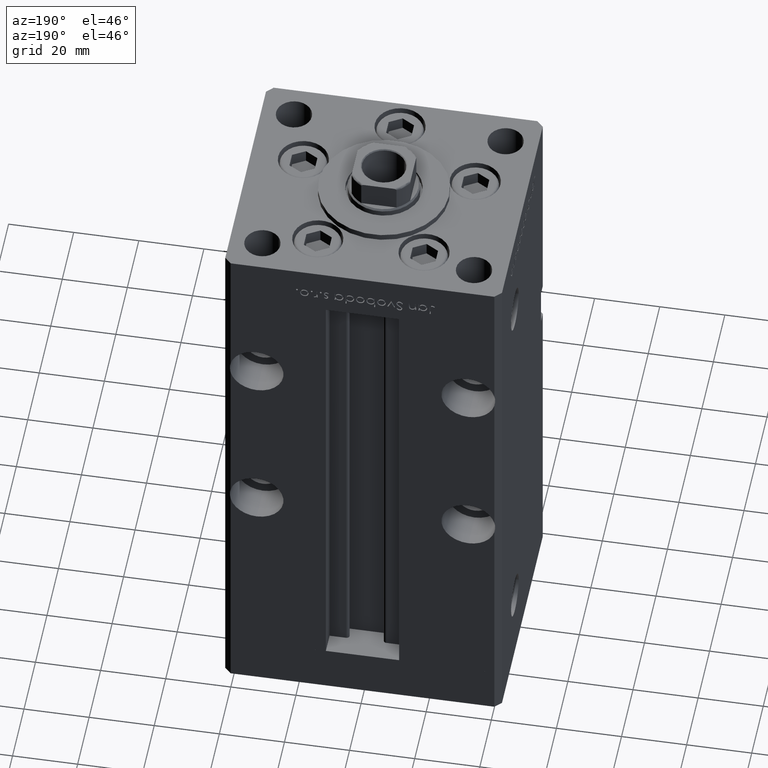
[diagram: clean part render]
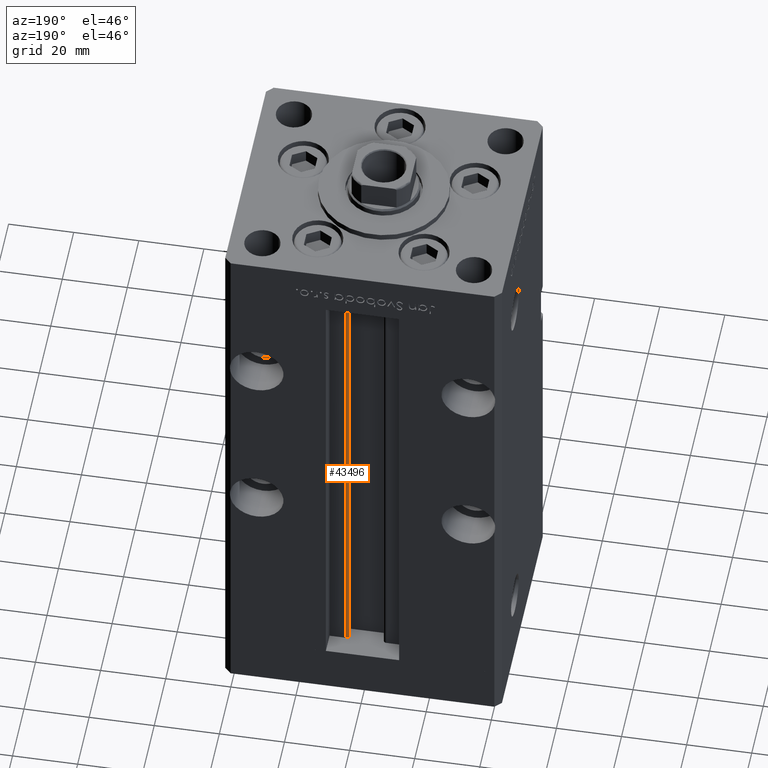
[diagram: same view with one face highlighted and labeled with its STEP entity id]
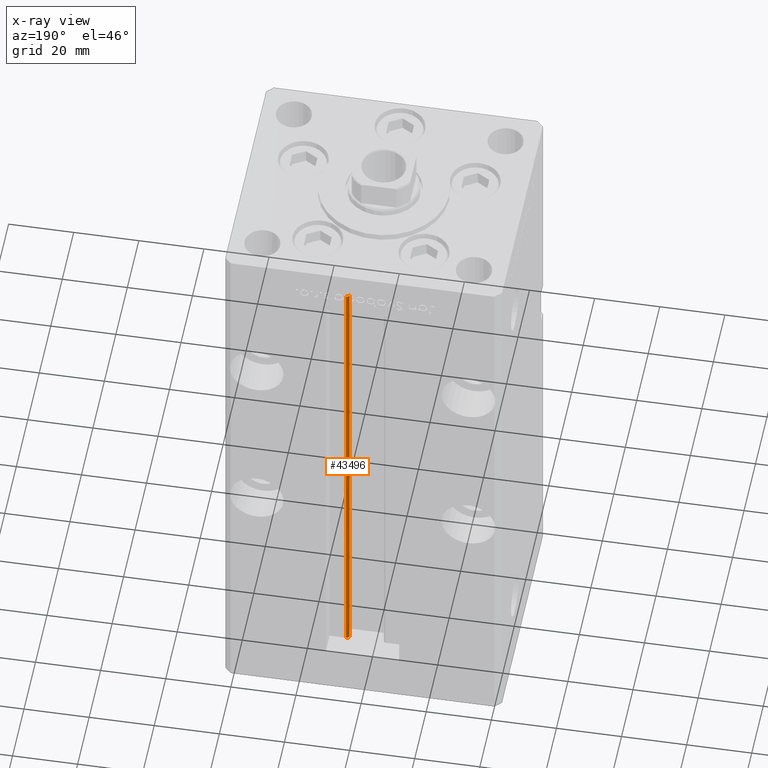
[diagram: x-ray of the same camera — body ghosted, the highlighted face saturated]
A machine part, auxiliary view. The second image highlights one B-rep face of the part: STEP entity #43496.
The next image is the same camera in x-ray: the body ghosted, the highlighted face saturated — about 0% of this face is hidden behind the body in this view.
In plain terms, the highlighted cylindrical surface (edge-blend (fillet) strip) has radius 0.9333 mm, axis along (0, 0, 1).
Its self-contained STEP definition (entity closure, byte-faithful):
#1014 = DIRECTION ( 'NONE',  ( -0.000000000000000000, -0.000000000000000000, 1.000000000000000000 ) ) ;
#1537 = FACE_OUTER_BOUND ( 'NONE', #52200, .T. ) ;
#2298 = CARTESIAN_POINT ( 'NONE',  ( 6.183333333333997928, 31.00000000000000000, 0.000000000000000000 ) ) ;
#4449 = CARTESIAN_POINT ( 'NONE',  ( 5.375042956467947164, 29.59999999999899245, 0.000000000000000000 ) ) ;
#6201 = ORIENTED_EDGE ( 'NONE', *, *, #49771, .F. ) ;
#6598 = AXIS2_PLACEMENT_3D ( 'NONE', #7160, #30539, #39946 ) ;
#6727 = DIRECTION ( 'NONE',  ( 1.000000000000000000, 0.000000000000000000, 0.000000000000000000 ) ) ;
#7160 = CARTESIAN_POINT ( 'NONE',  ( 6.183333333333997928, 30.06666666666599852, 0.000000000000000000 ) ) ;
#10701 = LINE ( 'NONE', #27368, #26582 ) ;
#12068 = VECTOR ( 'NONE', #19784, 1000.000000000000000 ) ;
#13841 = EDGE_CURVE ( 'NONE', #23677, #21876, #15212, .T. ) ;
#15212 = CIRCLE ( 'NONE', #6598, 0.9333333333340008142 ) ;
#15572 = CARTESIAN_POINT ( 'NONE',  ( 6.183333333333997928, 31.00000000000000000, 148.5000000000000000 ) ) ;
#16012 = CARTESIAN_POINT ( 'NONE',  ( 6.183333333333997928, 31.00000000000000000, 0.000000000000000000 ) ) ;
#17430 = DIRECTION ( 'NONE',  ( 1.000000000000000000, 0.000000000000000000, 0.000000000000000000 ) ) ;
#19784 = DIRECTION ( 'NONE',  ( -0.000000000000000000, -0.000000000000000000, 1.000000000000000000 ) ) ;
#21876 = VERTEX_POINT ( 'NONE', #2298 ) ;
#23677 = VERTEX_POINT ( 'NONE', #4449 ) ;
#25184 = ORIENTED_EDGE ( 'NONE', *, *, #43252, .T. ) ;
#25227 = CYLINDRICAL_SURFACE ( 'NONE', #53181, 0.9333333333340008142 ) ;
#26582 = VECTOR ( 'NONE', #40259, 1000.000000000000000 ) ;
#27368 = CARTESIAN_POINT ( 'NONE',  ( 5.375042956467947164, 29.59999999999899245, 0.000000000000000000 ) ) ;
#30071 = CARTESIAN_POINT ( 'NONE',  ( 5.375042956467946276, 29.59999999999899600, 148.5000000000000000 ) ) ;
#30308 = CARTESIAN_POINT ( 'NONE',  ( 6.183333333333997928, 30.06666666666599852, 0.000000000000000000 ) ) ;
#30539 = DIRECTION ( 'NONE',  ( -0.000000000000000000, -0.000000000000000000, -1.000000000000000000 ) ) ;
#31722 = AXIS2_PLACEMENT_3D ( 'NONE', #43250, #52400, #6727 ) ;
#34441 = ORIENTED_EDGE ( 'NONE', *, *, #13841, .F. ) ;
#39946 = DIRECTION ( 'NONE',  ( 1.000000000000000000, 0.000000000000000000, 0.000000000000000000 ) ) ;
#40259 = DIRECTION ( 'NONE',  ( -0.000000000000000000, -0.000000000000000000, 1.000000000000000000 ) ) ;
#43250 = CARTESIAN_POINT ( 'NONE',  ( 6.183333333333997928, 30.06666666666599852, 148.5000000000000000 ) ) ;
#43252 = EDGE_CURVE ( 'NONE', #51061, #51209, #48004, .T. ) ;
#43496 = ADVANCED_FACE ( 'NONE', ( #1537 ), #25227, .T. ) ;
#45257 = EDGE_CURVE ( 'NONE', #23677, #51061, #10701, .T. ) ;
#48004 = CIRCLE ( 'NONE', #31722, 0.9333333333340008142 ) ;
#48766 = LINE ( 'NONE', #16012, #12068 ) ;
#49771 = EDGE_CURVE ( 'NONE', #21876, #51209, #48766, .T. ) ;
#51061 = VERTEX_POINT ( 'NONE', #30071 ) ;
#51209 = VERTEX_POINT ( 'NONE', #15572 ) ;
#52200 = EDGE_LOOP ( 'NONE', ( #6201, #34441, #52963, #25184 ) ) ;
#52400 = DIRECTION ( 'NONE',  ( 0.000000000000000000, 0.000000000000000000, -1.000000000000000000 ) ) ;
#52963 = ORIENTED_EDGE ( 'NONE', *, *, #45257, .T. ) ;
#53181 = AXIS2_PLACEMENT_3D ( 'NONE', #30308, #1014, #17430 ) ;